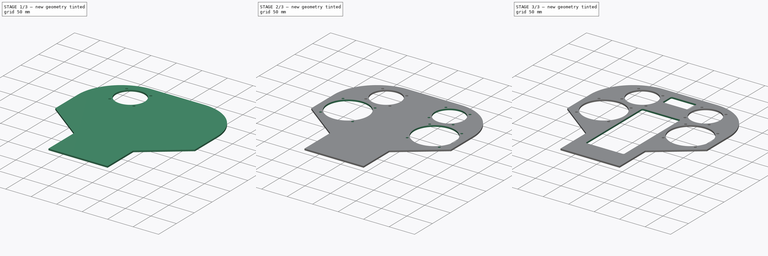
[diagram: build sequence overview — one tinted view per stage of 3, left to right]
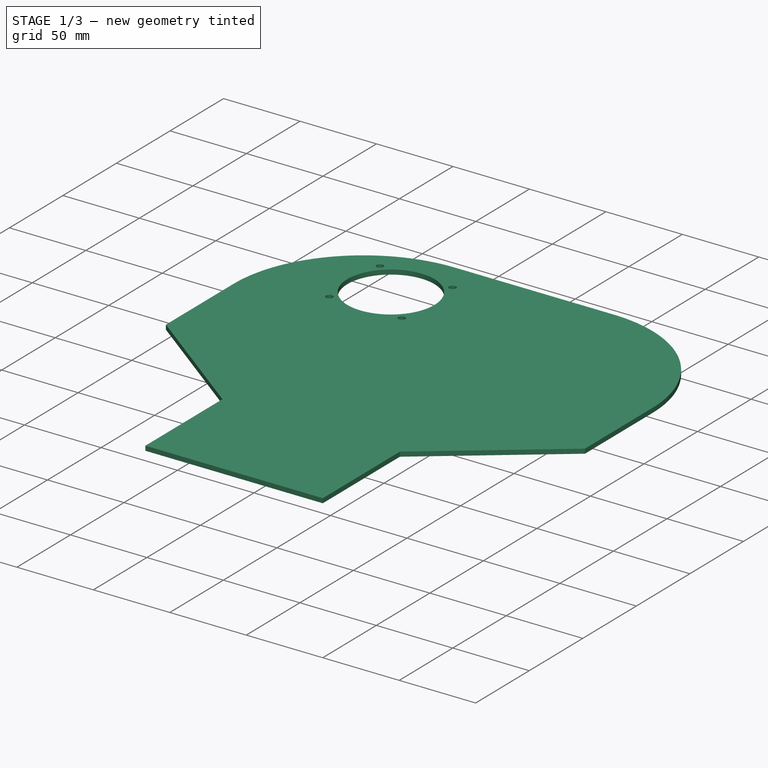
[diagram: stage 1 of 3 — iso view after this stage's code; geometry added in this stage tinted green]
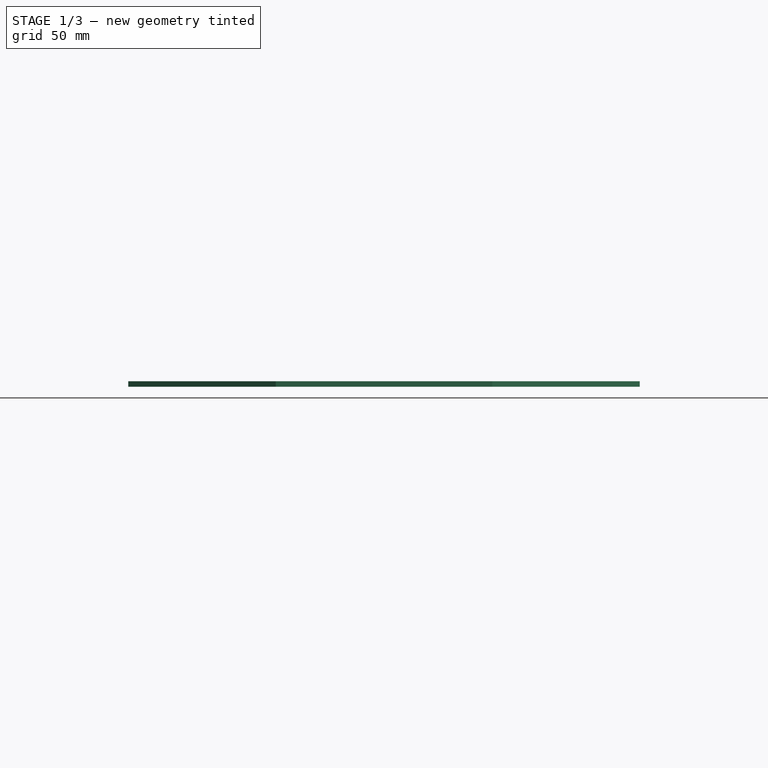
[diagram: stage 1 of 3 — front view after this stage's code; geometry added in this stage tinted green]
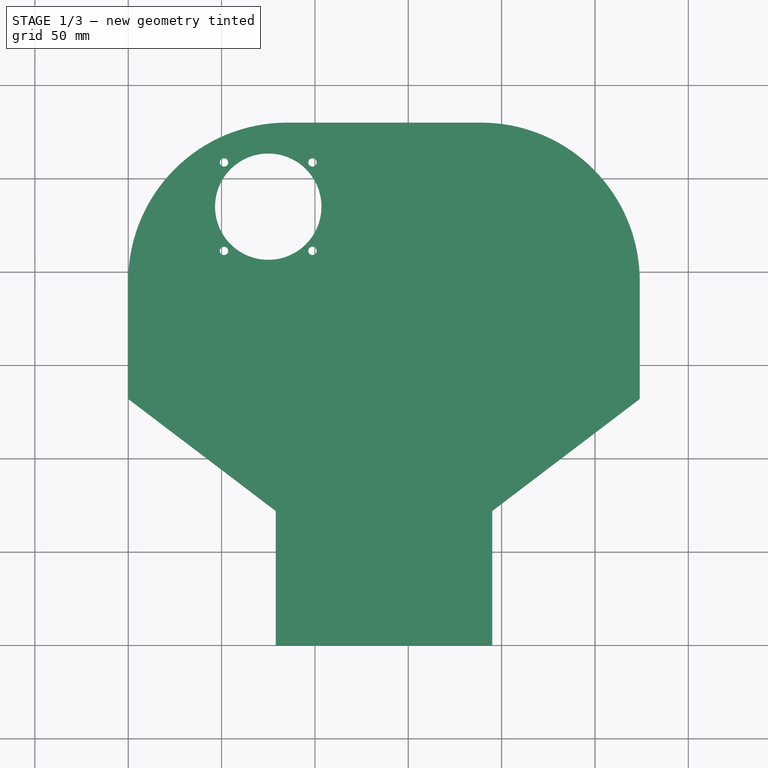
[diagram: stage 1 of 3 — top view after this stage's code; geometry added in this stage tinted green]
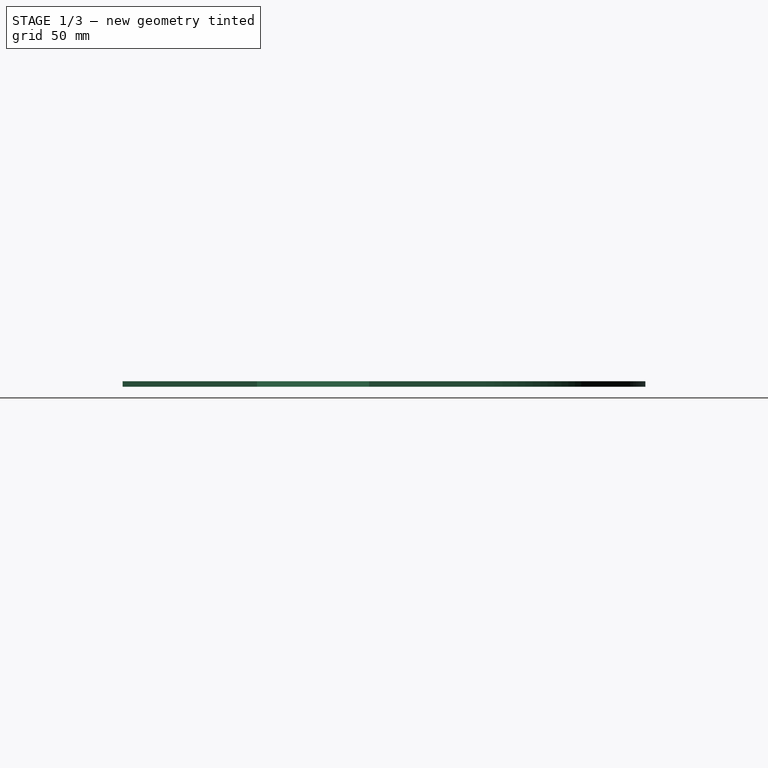
[diagram: stage 1 of 3 — right view after this stage's code; geometry added in this stage tinted green]
FCSTD DOCUMENT  (FreeCAD 0.18.3R)
Label: LS3 Instrumentenbrett
License: All rights reserved
LicenseURL: http://en.wikipedia.org/wiki/All_rights_reserved
objects: Sketcher::SketchObject×8, PartDesign::Pocket×6, PartDesign::Pad×1, PartDesign::Body×1
note: 23 computed .brp shape members not serialized (recipe doc carries the construction recipe); baked Part::Feature solids carry a one-line shape summary decoded from their .brp

FEATURE [Sketcher::SketchObject] Sketch  label="Rundinstrument_80mm"
  MapMode = 5
  Support = -> [XY_Plane]
  sketch-geometry (29):
    g0: Circle CenterX=222 CenterY=160 CenterZ=0 NormalX=0 NormalY=0 NormalZ=1 AngleXU=0 Radius=40
    g1: Circle [constr] CenterX=222 CenterY=160 CenterZ=0 NormalX=0 NormalY=0 NormalZ=1 AngleXU=0 Radius=44.5
    g2: LineSegment [constr] StartX=222 StartY=118.5 StartZ=0 EndX=222 EndY=201.5 EndZ=0
    g3: LineSegment [constr] StartX=186.645 StartY=195.355 StartZ=0 EndX=257.355 EndY=124.645 EndZ=0
    g4: LineSegment [constr] StartX=257.355 StartY=195.355 StartZ=0 EndX=186.645 EndY=124.645 EndZ=0
    g5: GeomPoint X=253.466 Y=191.466 Z=0
    g6: GeomPoint X=190.534 Y=191.466 Z=0
    g7: GeomPoint X=253.466 Y=191.466 Z=0
    g8: GeomPoint X=190.534 Y=191.466 Z=0
    g9: LineSegment [constr] StartX=180.5 StartY=160 StartZ=0 EndX=263.5 EndY=160 EndZ=0
    g10: LineSegment [constr] StartX=199 StartY=201.5 StartZ=0 EndX=245 EndY=201.5 EndZ=0
    g11: LineSegment [constr] StartX=199 StartY=118.5 StartZ=0 EndX=245 EndY=118.5 EndZ=0
    g12: LineSegment [constr] StartX=180.5 StartY=183 StartZ=0 EndX=180.5 EndY=137 EndZ=0
    g13: LineSegment [constr] StartX=263.5 StartY=183 StartZ=0 EndX=263.5 EndY=137 EndZ=0
    g14: LineSegment [constr] StartX=180.5 StartY=183 StartZ=0 EndX=186.645 EndY=195.355 EndZ=0
    g15: LineSegment [constr] StartX=186.645 StartY=195.355 StartZ=0 EndX=199 EndY=201.5 EndZ=0
    g16: LineSegment [constr] StartX=245 StartY=201.5 StartZ=0 EndX=257.355 EndY=195.355 EndZ=0
    g17: LineSegment [constr] StartX=257.355 StartY=195.355 StartZ=0 EndX=263.5 EndY=183 EndZ=0
    g18: LineSegment [constr] StartX=263.5 StartY=137 StartZ=0 EndX=257.355 EndY=124.645 EndZ=0
    g19: LineSegment [constr] StartX=257.355 StartY=124.645 StartZ=0 EndX=245 EndY=118.5 EndZ=0
    g20: LineSegment [constr] StartX=199 StartY=118.5 StartZ=0 EndX=186.645 EndY=124.645 EndZ=0
    g21: LineSegment [constr] StartX=186.645 StartY=124.645 StartZ=0 EndX=180.5 EndY=137 EndZ=0
    g22: Circle CenterX=253.466 CenterY=191.466 CenterZ=0 NormalX=0 NormalY=0 NormalZ=1 AngleXU=0 Radius=2.25
    g23: Circle CenterX=190.534 CenterY=191.466 CenterZ=0 NormalX=0 NormalY=0 NormalZ=1 AngleXU=0 Radius=2.25
    g24: Circle CenterX=190.534 CenterY=128.534 CenterZ=0 NormalX=0 NormalY=0 NormalZ=1 AngleXU=0 Radius=2.25
    g25: Circle CenterX=253.466 CenterY=128.534 CenterZ=0 NormalX=0 NormalY=0 NormalZ=1 AngleXU=0 Radius=2.25
    g26: GeomPoint X=190.534 Y=128.534 Z=0
    g27: GeomPoint X=253.466 Y=128.534 Z=0
    g28: GeomPoint X=253.466 Y=128.534 Z=0
  constraints (66):
    c: DistanceX(g0) = 222
    c: DistanceY(g0) = 160
    c: Diameter(g0) = 80
    c: Coincident(g1,g0)
    c: Diameter(g1) = 89
    c: Vertical(g2)
    c: DistanceY(g2,g2) = 83
    c: Symmetric(g2,g2,g0)
    c: Distance(g3) = 100
    c: Symmetric(g3,g3,g0)
    c: Angle(g2,g3) = 0.785398
    c: Equal(g3,g4) = 100
    c: Symmetric(g4,g4,g0)
    c: Angle(g4,g3) = 1.5708
    c: PointOnObject(g5,g1)
    c: PointOnObject(g5,g4)
    c: PointOnObject(g6,g1)
    c: PointOnObject(g6,g3)
    c: PointOnObject(g7,g1)
    c: PointOnObject(g7,g4)
    c: PointOnObject(g8,g1)
    c: PointOnObject(g8,g3)
    c: Horizontal(g9)
    c: DistanceX(g9,g9) = 83
    c: Symmetric(g9,g9,g0)
    c: Horizontal(g10)
    c: Horizontal(g11)
    c: Symmetric(g10,g10,g2)
    c: DistanceX(g10,g10) = 46
    c: DistanceX(g11,g11) = 46
    c: Symmetric(g11,g11,g2)
    c: Vertical(g12)
    c: DistanceY(g12,g12) = 46
    c: Vertical(g13)
    c: Equal(g12,g13) = 46
    c: Symmetric(g12,g12,g9)
    c: Symmetric(g13,g13,g9)
    c: Coincident(g12,g14)
    c: Coincident(g14,g3)
    c: Coincident(g14,g15)
    c: Coincident(g15,g10)
    c: Coincident(g10,g16)
    c: Coincident(g16,g4)
    c: Coincident(g16,g17)
    c: Coincident(g17,g13)
    c: Coincident(g13,g18)
    c: Coincident(g18,g3)
    c: Coincident(g18,g19)
    c: Coincident(g19,g11)
    c: Coincident(g11,g20)
    c: Coincident(g20,g4)
    c: Coincident(g20,g21)
    c: Coincident(g21,g12)
    c: Diameter(g22) = 4.5
    c: PointOnObject(g26,g1)
    c: PointOnObject(g26,g4)
    c: Coincident(g24,g26)
    c: Coincident(g6,g23)
    c: Coincident(g22,g5)
    c: Coincident(g25,g27)
    c: Diameter(g24) = 4.5
    c: Diameter(g23) = 4.5
    c: PointOnObject(g28,g1)
    c: PointOnObject(g28,g3)
    c: Coincident(g28,g25)
    c: Diameter(g25) = 4.5
FEATURE [Sketcher::SketchObject] Sketch001  label="Rundinstrument_57mm"
  MapMode = 5
  Support = -> [XY_Plane]
  sketch-geometry (25):
    g0: Circle CenterX=75 CenterY=235 CenterZ=0 NormalX=0 NormalY=0 NormalZ=1 AngleXU=0 Radius=28.5
    g1: Circle [constr] CenterX=75 CenterY=235 CenterZ=0 NormalX=0 NormalY=0 NormalZ=1 AngleXU=0 Radius=33.5
    g2: LineSegment [constr] StartX=75 StartY=205 StartZ=0 EndX=75 EndY=265 EndZ=0
    g3: LineSegment [constr] StartX=51.3119 StartY=258.688 StartZ=0 EndX=98.6881 EndY=211.312 EndZ=0
    g4: LineSegment [constr] StartX=98.6881 StartY=258.688 StartZ=0 EndX=51.3119 EndY=211.312 EndZ=0
    g5: GeomPoint X=98.6881 Y=258.688 Z=0
    g6: GeomPoint X=51.3119 Y=258.688 Z=0
    g7: GeomPoint X=98.6881 Y=258.688 Z=0
    g8: GeomPoint X=51.3119 Y=258.688 Z=0
    g9: LineSegment [constr] StartX=45 StartY=235 StartZ=0 EndX=105 EndY=235 EndZ=0
    g10: LineSegment [constr] StartX=52 StartY=265 StartZ=0 EndX=98 EndY=265 EndZ=0
    g11: LineSegment [constr] StartX=52 StartY=205 StartZ=0 EndX=98 EndY=205 EndZ=0
    g12: LineSegment [constr] StartX=45 StartY=258 StartZ=0 EndX=45 EndY=212 EndZ=0
    g13: LineSegment [constr] StartX=105 StartY=258 StartZ=0 EndX=105 EndY=212 EndZ=0
    g14: Circle CenterX=98.6881 CenterY=258.688 CenterZ=0 NormalX=0 NormalY=0 NormalZ=1 AngleXU=0 Radius=2.25
    g15: Circle CenterX=51.3119 CenterY=258.688 CenterZ=0 NormalX=0 NormalY=0 NormalZ=1 AngleXU=0 Radius=2.25
    g16: Circle CenterX=51.3119 CenterY=211.312 CenterZ=0 NormalX=0 NormalY=0 NormalZ=1 AngleXU=0 Radius=2.25
    g17: Circle CenterX=98.6881 CenterY=211.312 CenterZ=0 NormalX=0 NormalY=0 NormalZ=1 AngleXU=0 Radius=2.25
    g18: GeomPoint X=51.3119 Y=211.312 Z=0
    g19: GeomPoint X=98.6881 Y=211.312 Z=0
    g20: GeomPoint X=98.6881 Y=211.312 Z=0
    g21: LineSegment [constr] StartX=45 StartY=258 StartZ=0 EndX=52 EndY=265 EndZ=0
    g22: LineSegment [constr] StartX=98 StartY=265 StartZ=0 EndX=105 EndY=258 EndZ=0
    g23: LineSegment [constr] StartX=105 StartY=212 StartZ=0 EndX=98 EndY=205 EndZ=0
    g24: LineSegment [constr] StartX=52 StartY=205 StartZ=0 EndX=45 EndY=212 EndZ=0
  constraints (60):
    c: DistanceX(g0) = 75
    c: DistanceY(g0) = 235
    c: Coincident(g1,g0)
    c: Vertical(g2)
    c: DistanceY(g2,g2) = 60
    c: Symmetric(g2,g2,g0)
    c: Angle(g2,g3) = 0.785398
    c: Equal(g3,g4) = 100
    c: Angle(g4,g3) = 1.5708
    c: PointOnObject(g5,g1)
    c: PointOnObject(g5,g4)
    c: PointOnObject(g6,g1)
    c: PointOnObject(g6,g3)
    c: PointOnObject(g7,g1)
    c: PointOnObject(g7,g4)
    c: PointOnObject(g8,g1)
    c: PointOnObject(g8,g3)
    c: Horizontal(g9)
    c: DistanceX(g9,g9) = 60
    c: Symmetric(g9,g9,g0)
    c: Horizontal(g10)
    c: Horizontal(g11)
    c: Symmetric(g10,g10,g2)
    c: DistanceX(g10,g10) = 46
    c: DistanceX(g11,g11) = 46
    c: Symmetric(g11,g11,g2)
    c: Vertical(g12)
    c: DistanceY(g12,g12) = 46
    c: Vertical(g13)
    c: Equal(g12,g13) = 46
    c: Symmetric(g12,g12,g9)
    c: Symmetric(g13,g13,g9)
    c: Diameter(g14) = 4.5
    c: PointOnObject(g18,g1)
    c: PointOnObject(g18,g4)
    c: Coincident(g16,g18)
    c: Coincident(g6,g15)
    c: Coincident(g14,g5)
    c: Coincident(g17,g19)
    c: Diameter(g16) = 4.5
    c: Diameter(g15) = 4.5
    c: PointOnObject(g20,g1)
    c: PointOnObject(g20,g3)
    c: Coincident(g20,g17)
    c: Diameter(g17) = 4.5
    c: Diameter(g0) = 57
    c: Diameter(g1) = 67
    c: PointOnObject(g3,g1)
    c: PointOnObject(g4,g1)
    c: PointOnObject(g3,g1)
    c: PointOnObject(g0,g3)
    c: PointOnObject(g0,g4)
    c: Coincident(g21,g12)
    c: Coincident(g21,g10)
    c: Coincident(g22,g10)
    c: Coincident(g22,g13)
    c: Coincident(g23,g13)
    c: Coincident(g23,g11)
    c: Coincident(g24,g11)
    c: Coincident(g24,g12)
FEATURE [Sketcher::SketchObject] Sketch002  label="I-Brett"
  MapMode = 5
  Support = -> [XY_Plane]
  sketch-geometry (10):
    g0: LineSegment StartX=0 StartY=132 StartZ=0 EndX=0 EndY=195 EndZ=0
    g1: LineSegment StartX=85 StartY=280 StartZ=0 EndX=189 EndY=280 EndZ=0
    g2: LineSegment StartX=274 StartY=195 StartZ=0 EndX=274 EndY=132 EndZ=0
    g3: LineSegment StartX=274 StartY=132 StartZ=0 EndX=195 EndY=72 EndZ=0
    g4: LineSegment StartX=195 StartY=72 StartZ=0 EndX=195 EndY=0 EndZ=0
    g5: LineSegment StartX=195 StartY=0 StartZ=0 EndX=79 EndY=0 EndZ=0
    g6: LineSegment StartX=79 StartY=0 StartZ=0 EndX=79 EndY=72 EndZ=0
    g7: LineSegment StartX=79 StartY=72 StartZ=0 EndX=0 EndY=132 EndZ=0
    g8: ArcOfCircle CenterX=85 CenterY=195 CenterZ=0 NormalX=0 NormalY=0 NormalZ=1 AngleXU=0 Radius=85 StartAngle=1.5708 EndAngle=3.14159
    g9: ArcOfCircle CenterX=189 CenterY=195 CenterZ=0 NormalX=0 NormalY=0 NormalZ=1 AngleXU=0 Radius=85 StartAngle=0 EndAngle=1.5708
  constraints (28):
    c: Vertical(g0)
    c: Horizontal(g1)
    c: Vertical(g2)
    c: Coincident(g2,g3)
    c: Coincident(g3,g4)
    c: Vertical(g4)
    c: Coincident(g4,g5)
    c: Horizontal(g5)
    c: Coincident(g5,g6)
    c: Vertical(g6)
    c: Coincident(g7,g0)
    c: DistanceY(g-1,g0) = 132
    c: DistanceX(g-1,g0) = 0
    c: Equal(g0,g2)
    c: Equal(g6,g4)
    c: Equal(g7,g3)
    c: Coincident(g7,g6)
    c: DistanceY(g6,g6) = 72
    c: DistanceX(g5,g5) = 116
    c: DistanceY(g-1,g5) = 0
    c: Tangent(g1,g8) = 1.5708
    c: Tangent(g0,g8) = 1.5708
    c: Tangent(g1,g9) = 1.5708
    c: Tangent(g2,g9) = 1.5708
    c: Equal(g8,g9)
    c: DistanceY(g-1,g1) = 280
    c: DistanceX(g0,g2) = 274
    c: DistanceX(g1,g1) = 104
FEATURE [PartDesign::Pad] Pad
  Length = 3
  Length2 = 100
  Profile = -> Sketch002
  Refine = true
  Type = 0
FEATURE [PartDesign::Pocket] Pocket  label="Vario"
  BaseFeature = -> Pad
  Length = 3
  Length2 = 100
  Profile = -> Sketch001
  Refine = true
  Reversed = true
  Type = 0
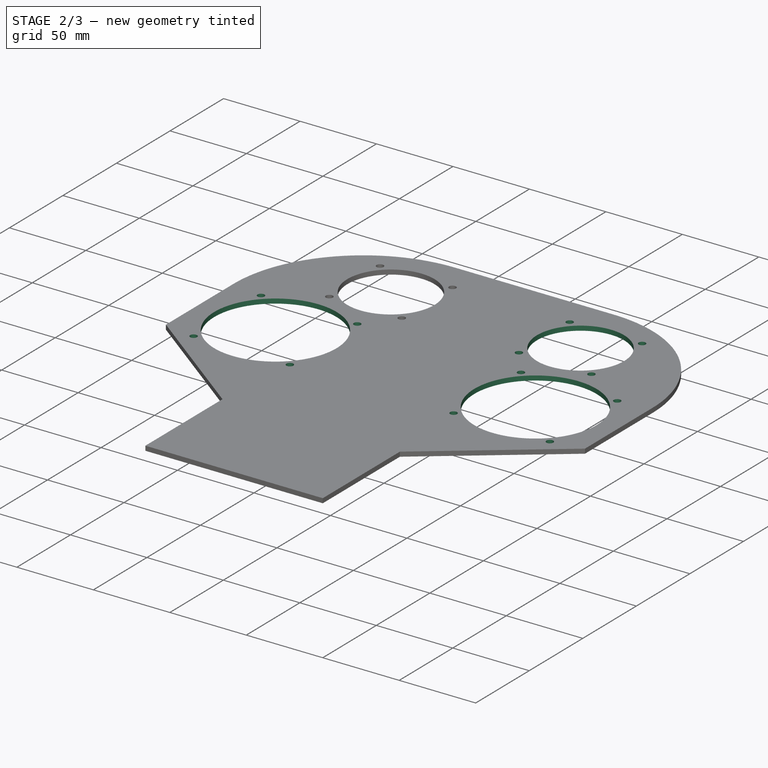
[diagram: stage 2 of 3 — iso view after this stage's code; geometry added in this stage tinted green]
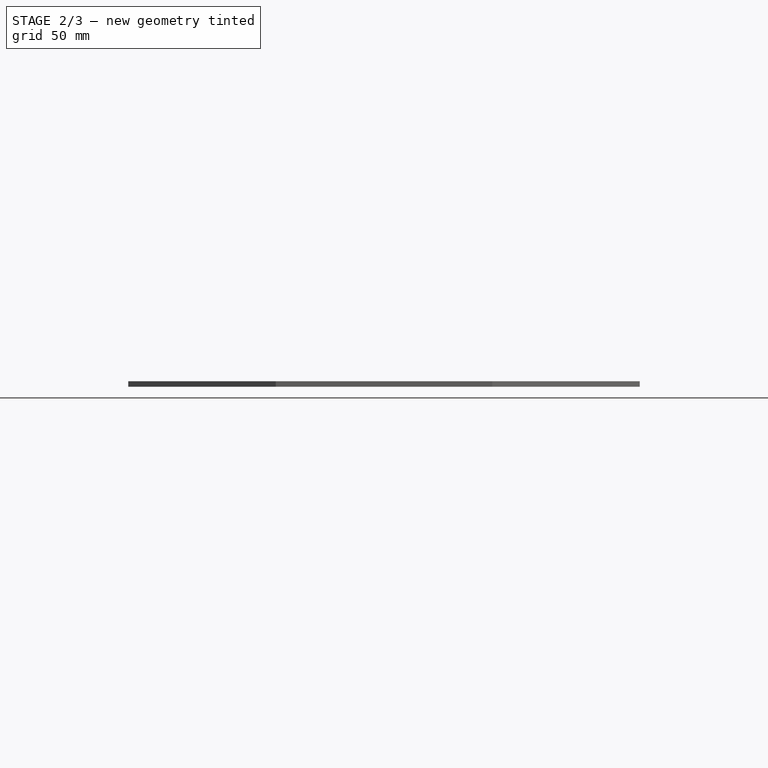
[diagram: stage 2 of 3 — front view after this stage's code; geometry added in this stage tinted green]
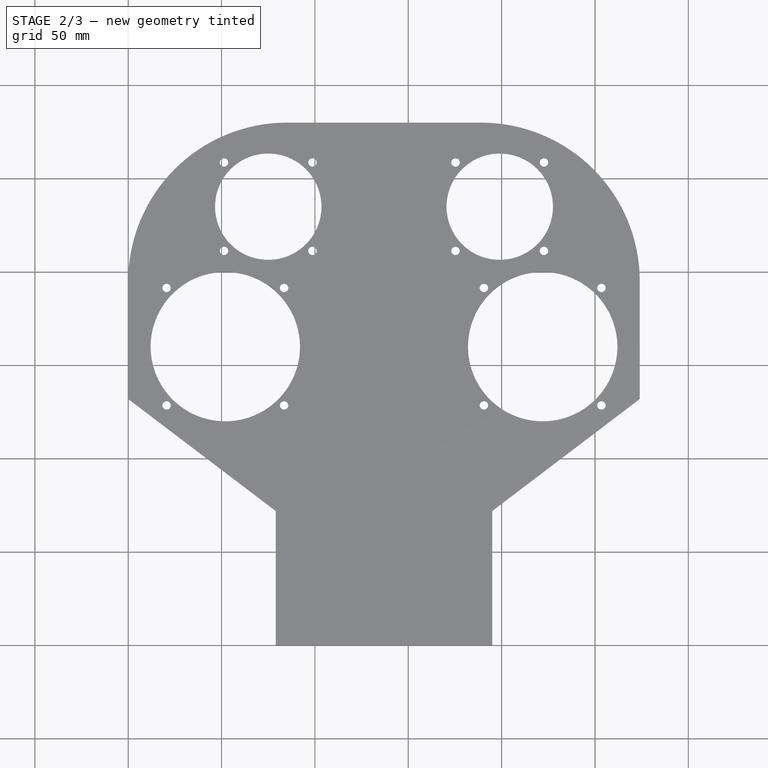
[diagram: stage 2 of 3 — top view after this stage's code; geometry added in this stage tinted green]
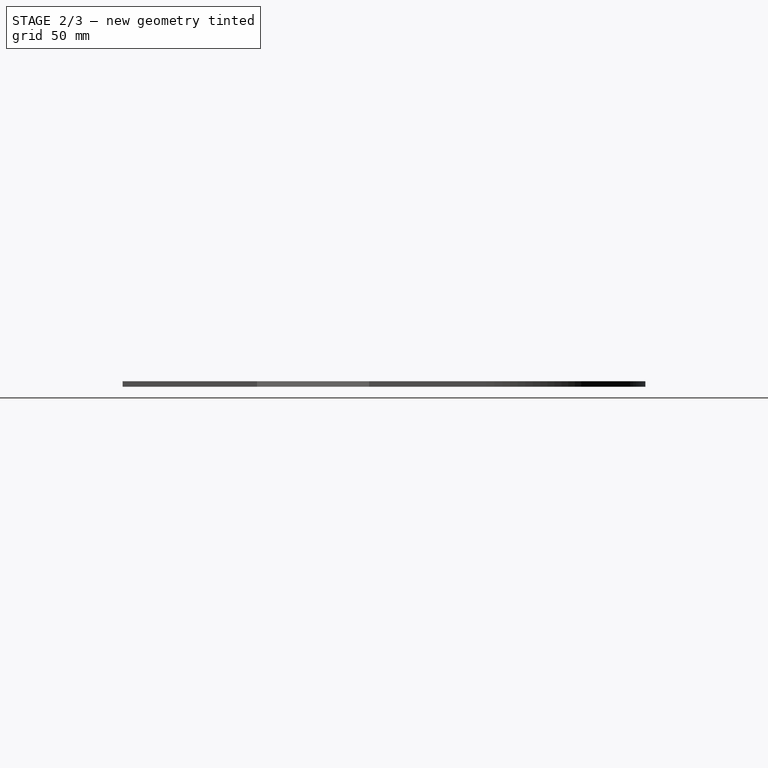
[diagram: stage 2 of 3 — right view after this stage's code; geometry added in this stage tinted green]
FEATURE [PartDesign::Pocket] Pocket001  label="Höhenmesser"
  BaseFeature = -> Pocket
  Length = 3
  Length2 = 100
  Profile = -> Sketch
  Refine = true
  Reversed = true
  Type = 0
FEATURE [Sketcher::SketchObject] CopySketch003  label="Rundinstrument_80mm#2"
  sketch-geometry (29):
    g0: Circle CenterX=52 CenterY=160 CenterZ=0 NormalX=0 NormalY=0 NormalZ=1 AngleXU=0 Radius=40
    g1: Circle [constr] CenterX=52 CenterY=160 CenterZ=0 NormalX=0 NormalY=0 NormalZ=1 AngleXU=0 Radius=44.5
    g2: LineSegment [constr] StartX=52 StartY=118.5 StartZ=0 EndX=52 EndY=201.5 EndZ=0
    g3: LineSegment [constr] StartX=16.6447 StartY=195.355 StartZ=0 EndX=87.3553 EndY=124.645 EndZ=0
    g4: LineSegment [constr] StartX=87.3553 StartY=195.355 StartZ=0 EndX=16.6447 EndY=124.645 EndZ=0
    g5: GeomPoint X=83.4663 Y=191.466 Z=0
    g6: GeomPoint X=20.5337 Y=191.466 Z=0
    g7: GeomPoint X=83.4663 Y=191.466 Z=0
    g8: GeomPoint X=20.5337 Y=191.466 Z=0
    g9: LineSegment [constr] StartX=10.5 StartY=160 StartZ=0 EndX=93.5 EndY=160 EndZ=0
    g10: LineSegment [constr] StartX=29 StartY=201.5 StartZ=0 EndX=75 EndY=201.5 EndZ=0
    g11: LineSegment [constr] StartX=29 StartY=118.5 StartZ=0 EndX=75 EndY=118.5 EndZ=0
    g12: LineSegment [constr] StartX=10.5 StartY=183 StartZ=0 EndX=10.5 EndY=137 EndZ=0
    g13: LineSegment [constr] StartX=93.5 StartY=183 StartZ=0 EndX=93.5 EndY=137 EndZ=0
    g14: LineSegment [constr] StartX=10.5 StartY=183 StartZ=0 EndX=16.6447 EndY=195.355 EndZ=0
    g15: LineSegment [constr] StartX=16.6447 StartY=195.355 StartZ=0 EndX=29 EndY=201.5 EndZ=0
    g16: LineSegment [constr] StartX=75 StartY=201.5 StartZ=0 EndX=87.3553 EndY=195.355 EndZ=0
    g17: LineSegment [constr] StartX=87.3553 StartY=195.355 StartZ=0 EndX=93.5 EndY=183 EndZ=0
    g18: LineSegment [constr] StartX=93.5 StartY=137 StartZ=0 EndX=87.3553 EndY=124.645 EndZ=0
    g19: LineSegment [constr] StartX=87.3553 StartY=124.645 StartZ=0 EndX=75 EndY=118.5 EndZ=0
    g20: LineSegment [constr] StartX=29 StartY=118.5 StartZ=0 EndX=16.6447 EndY=124.645 EndZ=0
    g21: LineSegment [constr] StartX=16.6447 StartY=124.645 StartZ=0 EndX=10.5 EndY=137 EndZ=0
    g22: Circle CenterX=83.4663 CenterY=191.466 CenterZ=0 NormalX=0 NormalY=0 NormalZ=1 AngleXU=0 Radius=2.25
    g23: Circle CenterX=20.5337 CenterY=191.466 CenterZ=0 NormalX=0 NormalY=0 NormalZ=1 AngleXU=0 Radius=2.25
    g24: Circle CenterX=20.5337 CenterY=128.534 CenterZ=0 NormalX=0 NormalY=0 NormalZ=1 AngleXU=0 Radius=2.25
    g25: Circle CenterX=83.4663 CenterY=128.534 CenterZ=0 NormalX=0 NormalY=0 NormalZ=1 AngleXU=0 Radius=2.25
    g26: GeomPoint X=20.5337 Y=128.534 Z=0
    g27: GeomPoint X=83.4663 Y=128.534 Z=0
    g28: GeomPoint X=83.4663 Y=128.534 Z=0
  constraints (66):
    c: DistanceX(g0) = 52
    c: DistanceY(g0) = 160
    c: Diameter(g0) = 80
    c: Coincident(g1,g0)
    c: Diameter(g1) = 89
    c: Vertical(g2)
    c: DistanceY(g2,g2) = 83
    c: Symmetric(g2,g2,g0)
    c: Distance(g3) = 100
    c: Symmetric(g3,g3,g0)
    c: Angle(g2,g3) = 0.785398
    c: Equal(g3,g4) = 100
    c: Symmetric(g4,g4,g0)
    c: Angle(g4,g3) = 1.5708
    c: PointOnObject(g5,g1)
    c: PointOnObject(g5,g4)
    c: PointOnObject(g6,g1)
    c: PointOnObject(g6,g3)
    c: PointOnObject(g7,g1)
    c: PointOnObject(g7,g4)
    c: PointOnObject(g8,g1)
    c: PointOnObject(g8,g3)
    c: Horizontal(g9)
    c: DistanceX(g9,g9) = 83
    c: Symmetric(g9,g9,g0)
    c: Horizontal(g10)
    c: Horizontal(g11)
    c: Symmetric(g10,g10,g2)
    c: DistanceX(g10,g10) = 46
    c: DistanceX(g11,g11) = 46
    c: Symmetric(g11,g11,g2)
    c: Vertical(g12)
    c: DistanceY(g12,g12) = 46
    c: Vertical(g13)
    c: Equal(g12,g13) = 46
    c: Symmetric(g12,g12,g9)
    c: Symmetric(g13,g13,g9)
    c: Coincident(g12,g14)
    c: Coincident(g14,g3)
    c: Coincident(g14,g15)
    c: Coincident(g15,g10)
    c: Coincident(g10,g16)
    c: Coincident(g16,g4)
    c: Coincident(g16,g17)
    c: Coincident(g17,g13)
    c: Coincident(g13,g18)
    c: Coincident(g18,g3)
    c: Coincident(g18,g19)
    c: Coincident(g19,g11)
    c: Coincident(g11,g20)
    c: Coincident(g20,g4)
    c: Coincident(g20,g21)
    c: Coincident(g21,g12)
    c: Diameter(g22) = 4.5
    c: PointOnObject(g26,g1)
    c: PointOnObject(g26,g4)
    c: Coincident(g24,g26)
    c: Coincident(g6,g23)
    c: Coincident(g22,g5)
    c: Coincident(g25,g27)
    c: Diameter(g24) = 4.5
    c: Diameter(g23) = 4.5
    c: PointOnObject(g28,g1)
    c: PointOnObject(g28,g3)
    c: Coincident(g28,g25)
    c: Diameter(g25) = 4.5
FEATURE [PartDesign::Pocket] Pocket002  label="Fahrtmesser"
  BaseFeature = -> Pocket001
  Length = 5
  Length2 = 100
  Profile = -> CopySketch003
  Refine = true
  Reversed = true
  Type = 0
FEATURE [Sketcher::SketchObject] Sketch003  label="Rundinstrument_57mm#2"
  MapMode = 5
  sketch-geometry (25):
    g0: Circle CenterX=199 CenterY=235 CenterZ=0 NormalX=0 NormalY=0 NormalZ=1 AngleXU=0 Radius=28.5
    g1: Circle [constr] CenterX=199 CenterY=235 CenterZ=0 NormalX=0 NormalY=0 NormalZ=1 AngleXU=0 Radius=33.5
    g2: LineSegment [constr] StartX=199 StartY=205 StartZ=0 EndX=199 EndY=265 EndZ=0
    g3: LineSegment [constr] StartX=175.312 StartY=258.688 StartZ=0 EndX=222.688 EndY=211.312 EndZ=0
    g4: LineSegment [constr] StartX=222.688 StartY=258.688 StartZ=0 EndX=175.312 EndY=211.312 EndZ=0
    g5: GeomPoint X=222.688 Y=258.688 Z=0
    g6: GeomPoint X=175.312 Y=258.688 Z=0
    g7: GeomPoint X=222.688 Y=258.688 Z=0
    g8: GeomPoint X=175.312 Y=258.688 Z=0
    g9: LineSegment [constr] StartX=169 StartY=235 StartZ=0 EndX=229 EndY=235 EndZ=0
    g10: LineSegment [constr] StartX=176 StartY=265 StartZ=0 EndX=222 EndY=265 EndZ=0
    g11: LineSegment [constr] StartX=176 StartY=205 StartZ=0 EndX=222 EndY=205 EndZ=0
    g12: LineSegment [constr] StartX=169 StartY=258 StartZ=0 EndX=169 EndY=212 EndZ=0
    g13: LineSegment [constr] StartX=229 StartY=258 StartZ=0 EndX=229 EndY=212 EndZ=0
    g14: Circle CenterX=222.688 CenterY=258.688 CenterZ=0 NormalX=0 NormalY=0 NormalZ=1 AngleXU=0 Radius=2.25
    g15: Circle CenterX=175.312 CenterY=258.688 CenterZ=0 NormalX=0 NormalY=0 NormalZ=1 AngleXU=0 Radius=2.25
    g16: Circle CenterX=175.312 CenterY=211.312 CenterZ=0 NormalX=0 NormalY=0 NormalZ=1 AngleXU=0 Radius=2.25
    g17: Circle CenterX=222.688 CenterY=211.312 CenterZ=0 NormalX=0 NormalY=0 NormalZ=1 AngleXU=0 Radius=2.25
    g18: GeomPoint X=175.312 Y=211.312 Z=0
    g19: GeomPoint X=222.688 Y=211.312 Z=0
    g20: GeomPoint X=222.688 Y=211.312 Z=0
    g21: LineSegment [constr] StartX=169 StartY=258 StartZ=0 EndX=176 EndY=265 EndZ=0
    g22: LineSegment [constr] StartX=222 StartY=265 StartZ=0 EndX=229 EndY=258 EndZ=0
    g23: LineSegment [constr] StartX=229 StartY=212 StartZ=0 EndX=222 EndY=205 EndZ=0
    g24: LineSegment [constr] StartX=176 StartY=205 StartZ=0 EndX=169 EndY=212 EndZ=0
  constraints (60):
    c: DistanceX(g0) = 199
    c: DistanceY(g0) = 235
    c: Coincident(g1,g0)
    c: Vertical(g2)
    c: DistanceY(g2,g2) = 60
    c: Symmetric(g2,g2,g0)
    c: Angle(g2,g3) = 0.785398
    c: Equal(g3,g4) = 100
    c: Angle(g4,g3) = 1.5708
    c: PointOnObject(g5,g1)
    c: PointOnObject(g5,g4)
    c: PointOnObject(g6,g1)
    c: PointOnObject(g6,g3)
    c: PointOnObject(g7,g1)
    c: PointOnObject(g7,g4)
    c: PointOnObject(g8,g1)
    c: PointOnObject(g8,g3)
    c: Horizontal(g9)
    c: DistanceX(g9,g9) = 60
    c: Symmetric(g9,g9,g0)
    c: Horizontal(g10)
    c: Horizontal(g11)
    c: Symmetric(g10,g10,g2)
    c: DistanceX(g10,g10) = 46
    c: DistanceX(g11,g11) = 46
    c: Symmetric(g11,g11,g2)
    c: Vertical(g12)
    c: DistanceY(g12,g12) = 46
    c: Vertical(g13)
    c: Equal(g12,g13) = 46
    c: Symmetric(g12,g12,g9)
    c: Symmetric(g13,g13,g9)
    c: Diameter(g14) = 4.5
    c: PointOnObject(g18,g1)
    c: PointOnObject(g18,g4)
    c: Coincident(g16,g18)
    c: Coincident(g6,g15)
    c: Coincident(g14,g5)
    c: Coincident(g17,g19)
    c: Diameter(g16) = 4.5
    c: Diameter(g15) = 4.5
    c: PointOnObject(g20,g1)
    c: PointOnObject(g20,g3)
    c: Coincident(g20,g17)
    c: Diameter(g17) = 4.5
    c: Diameter(g0) = 57
    c: Diameter(g1) = 67
    c: PointOnObject(g3,g1)
    c: PointOnObject(g4,g1)
    c: PointOnObject(g3,g1)
    c: PointOnObject(g0,g3)
    c: PointOnObject(g0,g4)
    c: Coincident(g21,g12)
    c: Coincident(g21,g10)
    c: Coincident(g22,g10)
    c: Coincident(g22,g13)
    c: Coincident(g23,g13)
    c: Coincident(g23,g11)
    c: Coincident(g24,g11)
    c: Coincident(g24,g12)
FEATURE [PartDesign::Pocket] Pocket004  label="E-Vario"
  BaseFeature = -> Pocket002
  Length = 5
  Length2 = 100
  Profile = -> Sketch003
  Refine = true
  Reversed = true
  Type = 0
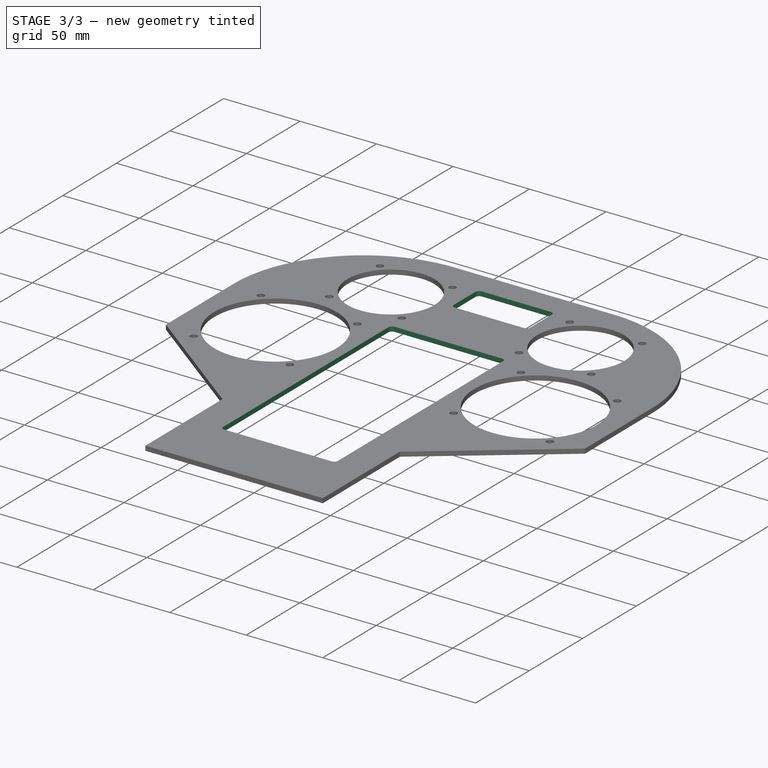
[diagram: stage 3 of 3 — iso view after this stage's code; geometry added in this stage tinted green]
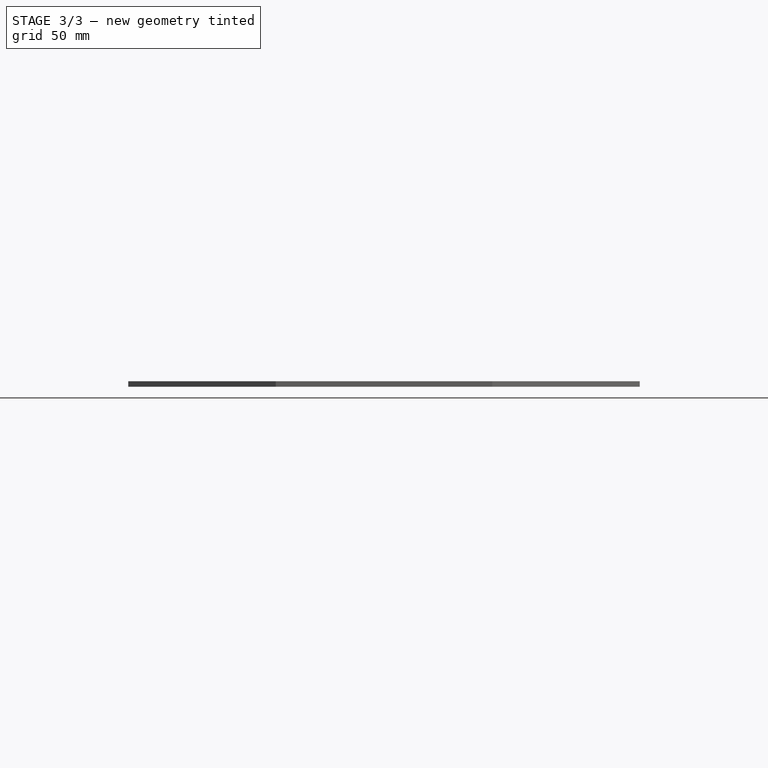
[diagram: stage 3 of 3 — front view after this stage's code; geometry added in this stage tinted green]
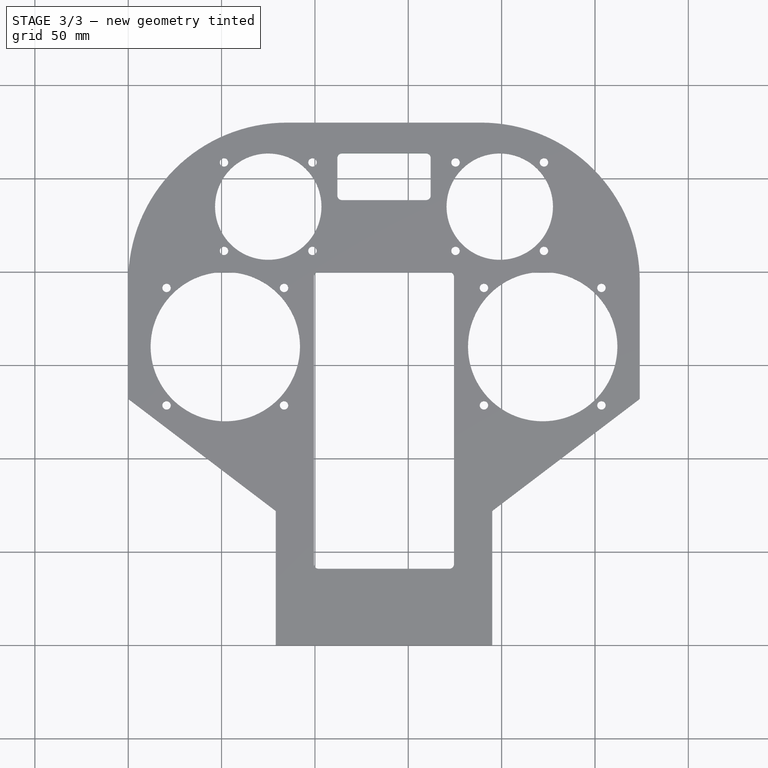
[diagram: stage 3 of 3 — top view after this stage's code; geometry added in this stage tinted green]
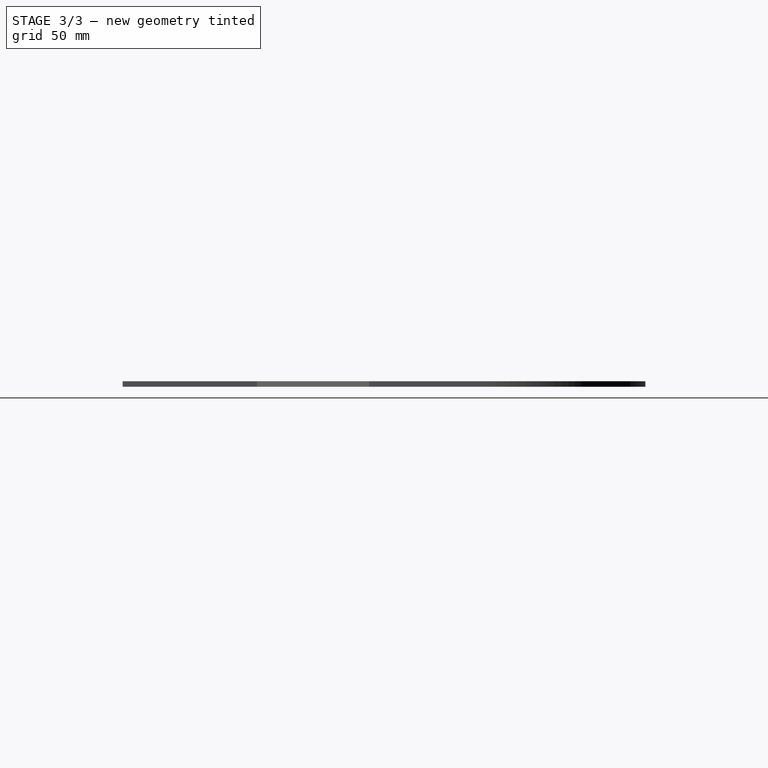
[diagram: stage 3 of 3 — right view after this stage's code; geometry added in this stage tinted green]
FEATURE [Sketcher::SketchObject] Sketch004  label="Flarm_Gehäuse"
  MapMode = 5
  Support = -> [XY_Plane]
  sketch-geometry (9):
    g0: LineSegment StartX=114.5 StartY=263.5 StartZ=0 EndX=159.5 EndY=263.5 EndZ=0
    g1: LineSegment StartX=162 StartY=261 StartZ=0 EndX=162 EndY=241 EndZ=0
    g2: LineSegment StartX=159.5 StartY=238.5 StartZ=0 EndX=114.5 EndY=238.5 EndZ=0
    g3: LineSegment StartX=112 StartY=241 StartZ=0 EndX=112 EndY=261 EndZ=0
    g4: ArcOfCircle CenterX=159.5 CenterY=241 CenterZ=0 NormalX=0 NormalY=0 NormalZ=1 AngleXU=0 Radius=2.5 StartAngle=4.71239 EndAngle=6.28319
    g5: ArcOfCircle CenterX=159.5 CenterY=261 CenterZ=0 NormalX=0 NormalY=0 NormalZ=1 AngleXU=0 Radius=2.5 StartAngle=8.5e-15 EndAngle=1.5708
    g6: ArcOfCircle CenterX=114.5 CenterY=261 CenterZ=0 NormalX=0 NormalY=0 NormalZ=1 AngleXU=0 Radius=2.5 StartAngle=1.5708 EndAngle=3.14159
    g7: ArcOfCircle CenterX=114.5 CenterY=241 CenterZ=0 NormalX=0 NormalY=0 NormalZ=1 AngleXU=0 Radius=2.5 StartAngle=3.14159 EndAngle=4.71239
    g8: GeomPoint X=137 Y=251 Z=0
  constraints (22):
    c: Horizontal(g0)
    c: Horizontal(g2)
    c: Vertical(g1)
    c: Vertical(g3)
    c: Tangent(g1,g4) = 1.5708
    c: Tangent(g2,g4) = 1.5708
    c: Tangent(g0,g5) = 1.5708
    c: Tangent(g1,g5) = 1.5708
    c: Tangent(g0,g6) = 1.5708
    c: Tangent(g3,g6) = 1.5708
    c: Tangent(g2,g7) = 1.5708
    c: Tangent(g3,g7) = 1.5708
    c: Equal(g5,g4)
    c: Equal(g6,g7)
    c: Equal(g7,g4)
    c: DistanceY(g2,g0) = 25
    c: DistanceX(g3,g1) = 50
    c: DistanceX(g3,g8) = 25
    c: DistanceY(g2,g8) = 12.5
    c: Diameter(g5) = 5
    c: DistanceX(g-1,g8) = 137
    c: DistanceY(g-1,g8) = 251
FEATURE [PartDesign::Pocket] Pocket005  label="Flarm"
  BaseFeature = -> Pocket004
  Length = 5
  Length2 = 100
  Profile = -> Sketch004
  Refine = true
  Reversed = true
  Type = 0
FEATURE [Sketcher::SketchObject] Sketch005  label="Flarm_Gehäuse001"
  MapMode = 5
  Support = -> [XY_Plane001]
  sketch-geometry (9):
    g0: LineSegment StartX=114.5 StartY=200.5 StartZ=0 EndX=159.5 EndY=200.5 EndZ=0
    g1: LineSegment StartX=162 StartY=198 StartZ=0 EndX=162 EndY=178 EndZ=0
    g2: LineSegment StartX=159.5 StartY=175.5 StartZ=0 EndX=114.5 EndY=175.5 EndZ=0
    g3: LineSegment StartX=112 StartY=178 StartZ=0 EndX=112 EndY=198 EndZ=0
    g4: ArcOfCircle CenterX=159.5 CenterY=178 CenterZ=0 NormalX=0 NormalY=0 NormalZ=1 AngleXU=0 Radius=2.5 StartAngle=4.71239 EndAngle=6.28319
    g5: ArcOfCircle CenterX=159.5 CenterY=198 CenterZ=0 NormalX=0 NormalY=0 NormalZ=1 AngleXU=0 Radius=2.5 StartAngle=-2.7e-15 EndAngle=1.5708
    g6: ArcOfCircle CenterX=114.5 CenterY=198 CenterZ=0 NormalX=0 NormalY=0 NormalZ=1 AngleXU=0 Radius=2.5 StartAngle=1.5708 EndAngle=3.14159
    g7: ArcOfCircle CenterX=114.5 CenterY=178 CenterZ=0 NormalX=0 NormalY=0 NormalZ=1 AngleXU=0 Radius=2.5 StartAngle=3.14159 EndAngle=4.71239
    g8: GeomPoint X=137 Y=188 Z=0
  constraints (22):
    c: Horizontal(g0)
    c: Horizontal(g2)
    c: Vertical(g1)
    c: Vertical(g3)
    c: Tangent(g1,g4) = 1.5708
    c: Tangent(g2,g4) = 1.5708
    c: Tangent(g0,g5) = 1.5708
    c: Tangent(g1,g5) = 1.5708
    c: Tangent(g0,g6) = 1.5708
    c: Tangent(g3,g6) = 1.5708
    c: Tangent(g2,g7) = 1.5708
    c: Tangent(g3,g7) = 1.5708
    c: Equal(g5,g4)
    c: Equal(g6,g7)
    c: Equal(g7,g4)
    c: DistanceY(g2,g0) = 25
    c: DistanceX(g3,g1) = 50
    c: DistanceX(g3,g8) = 25
    c: DistanceY(g2,g8) = 12.5
    c: Diameter(g5) = 5
    c: DistanceX(g-1,g8) = 137
    c: DistanceY(g-1,g8) = 188
FEATURE [Sketcher::SketchObject] CopySketch005
  sketch-geometry (9):
    g0: LineSegment StartX=102 StartY=200 StartZ=0 EndX=172 EndY=200 EndZ=0
    g1: LineSegment StartX=174.5 StartY=197.5 StartZ=0 EndX=174.5 EndY=43.5 EndZ=0
    g2: LineSegment StartX=172 StartY=41 StartZ=0 EndX=102 EndY=41 EndZ=0
    g3: LineSegment StartX=99.5 StartY=43.5 StartZ=0 EndX=99.5 EndY=197.5 EndZ=0
    g4: ArcOfCircle CenterX=172 CenterY=43.5 CenterZ=0 NormalX=0 NormalY=0 NormalZ=1 AngleXU=0 Radius=2.5 StartAngle=4.71239 EndAngle=6.28319
    g5: ArcOfCircle CenterX=172 CenterY=197.5 CenterZ=0 NormalX=0 NormalY=0 NormalZ=1 AngleXU=0 Radius=2.5 StartAngle=1.3e-15 EndAngle=1.5708
    g6: ArcOfCircle CenterX=102 CenterY=197.5 CenterZ=0 NormalX=0 NormalY=0 NormalZ=1 AngleXU=0 Radius=2.5 StartAngle=1.5708 EndAngle=3.14159
    g7: ArcOfCircle CenterX=102 CenterY=43.5 CenterZ=0 NormalX=0 NormalY=0 NormalZ=1 AngleXU=0 Radius=2.5 StartAngle=3.14159 EndAngle=4.71239
    g8: GeomPoint X=137 Y=120.5 Z=0
  constraints (22):
    c: Horizontal(g0)
    c: Horizontal(g2)
    c: Vertical(g1)
    c: Vertical(g3)
    c: Tangent(g1,g4) = 1.5708
    c: Tangent(g2,g4) = 1.5708
    c: Tangent(g0,g5) = 1.5708
    c: Tangent(g1,g5) = 1.5708
    c: Tangent(g0,g6) = 1.5708
    c: Tangent(g3,g6) = 1.5708
    c: Tangent(g2,g7) = 1.5708
    c: Tangent(g3,g7) = 1.5708
    c: Equal(g5,g4)
    c: Equal(g6,g7)
    c: Equal(g7,g4)
    c: DistanceY(g2,g0) = 159
    c: DistanceX(g3,g1) = 75
    c: DistanceX(g3,g8) = 37.5
    c: DistanceY(g2,g8) = 79.5
    c: Diameter(g5) = 5
    c: DistanceX(g-1,g8) = 137
    c: DistanceY(g-1,g8) = 120.5
FEATURE [PartDesign::Pocket] Pocket006
  BaseFeature = -> Pocket005
  Length = 5
  Length2 = 100
  Profile = -> CopySketch005
  Refine = true
  Reversed = true
  Type = 0
FEATURE [PartDesign::Body] Body
  Group = -> [Sketch,Sketch001,Sketch002,Pad,Pocket,Pocket001,Pocket002,Pocket004,Sketch004,Pocket005,Pocket006]
  Origin = -> Origin
  Tip = -> Pocket006
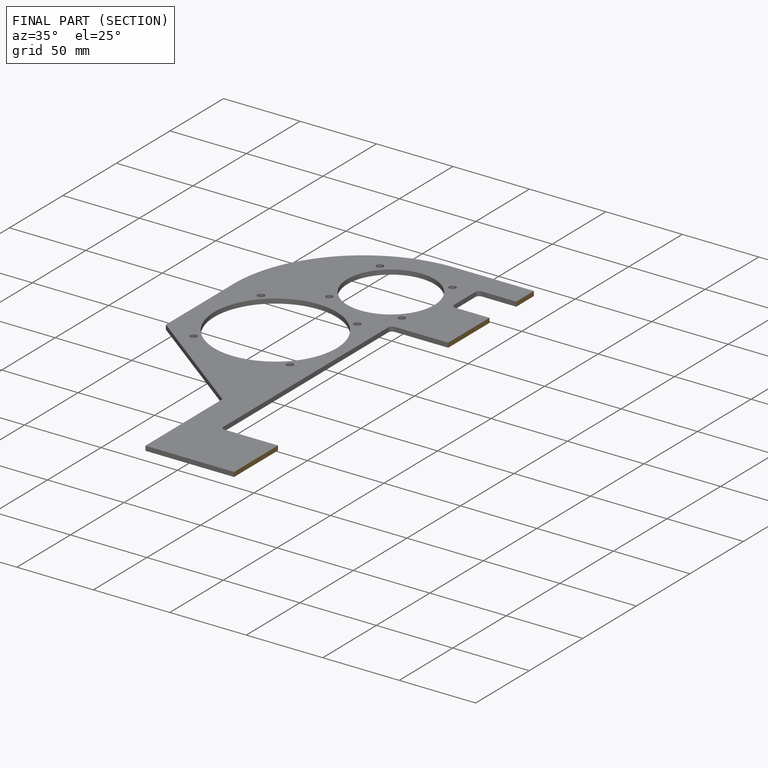
[diagram: finished part — half-section view (interior)]
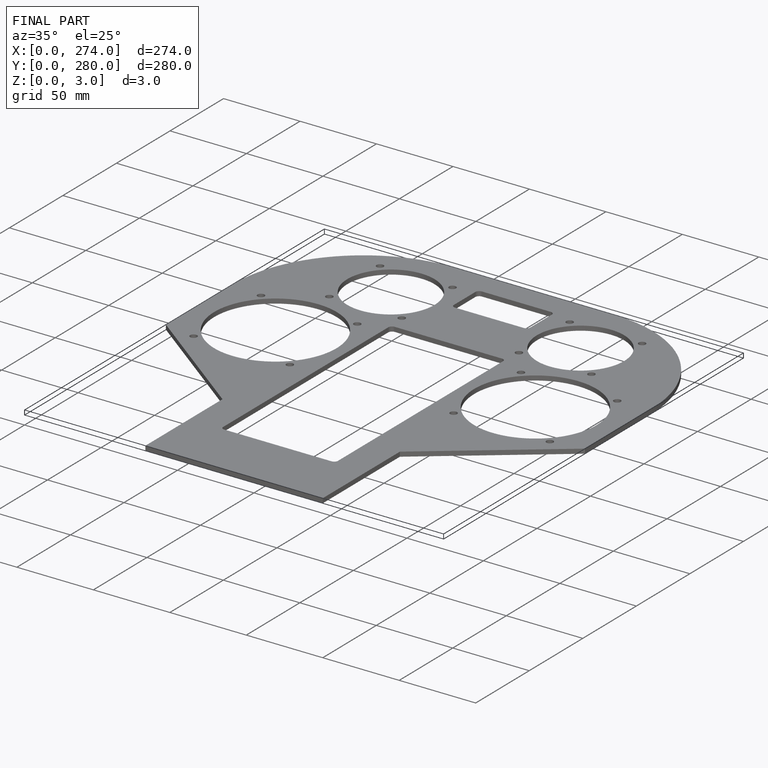
[diagram: finished part — iso view with bounding-box wireframe]
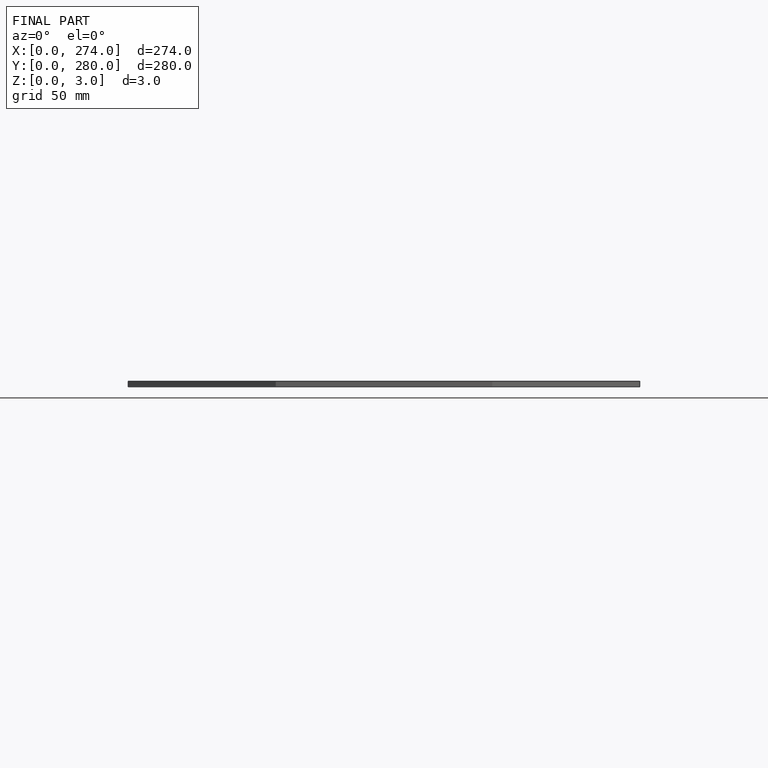
[diagram: finished part — front view with bounding-box wireframe]
